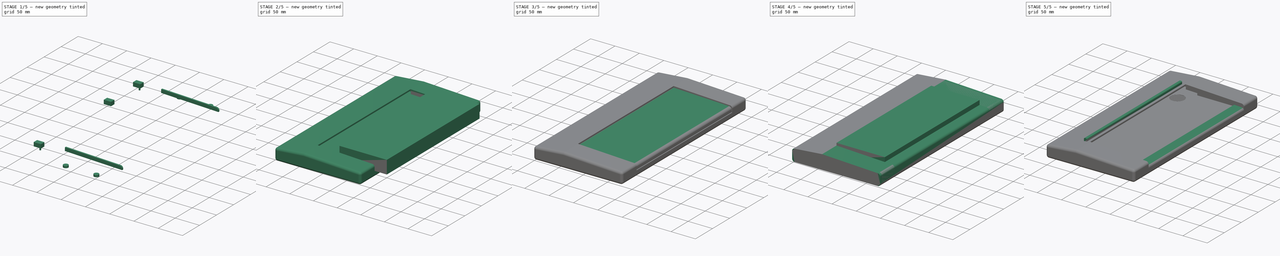
[diagram: build sequence overview — one tinted view per stage of 5, left to right]
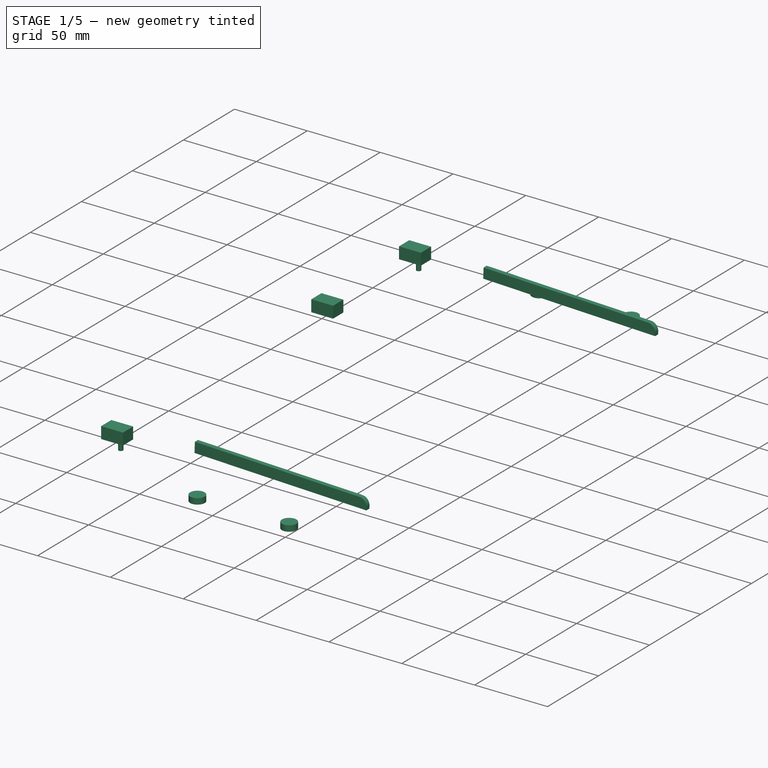
[diagram: stage 1 of 5 — iso view after this stage's code; geometry added in this stage tinted green]
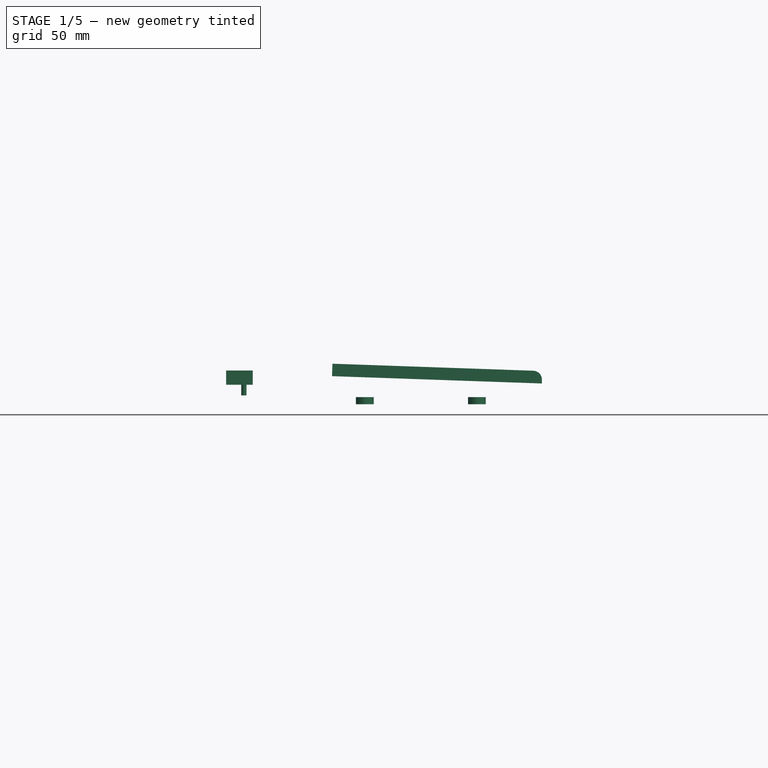
[diagram: stage 1 of 5 — front view after this stage's code; geometry added in this stage tinted green]
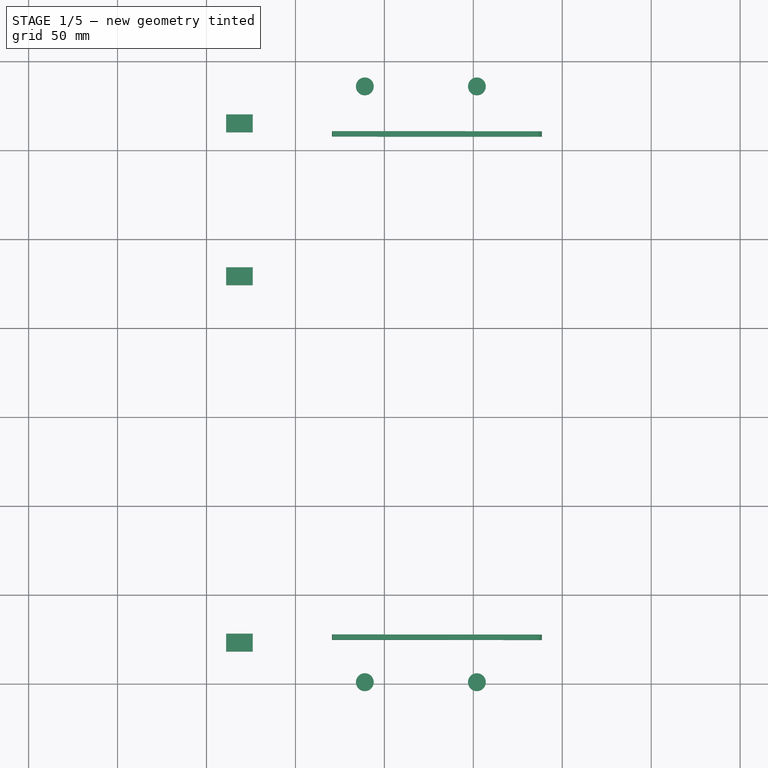
[diagram: stage 1 of 5 — top view after this stage's code; geometry added in this stage tinted green]
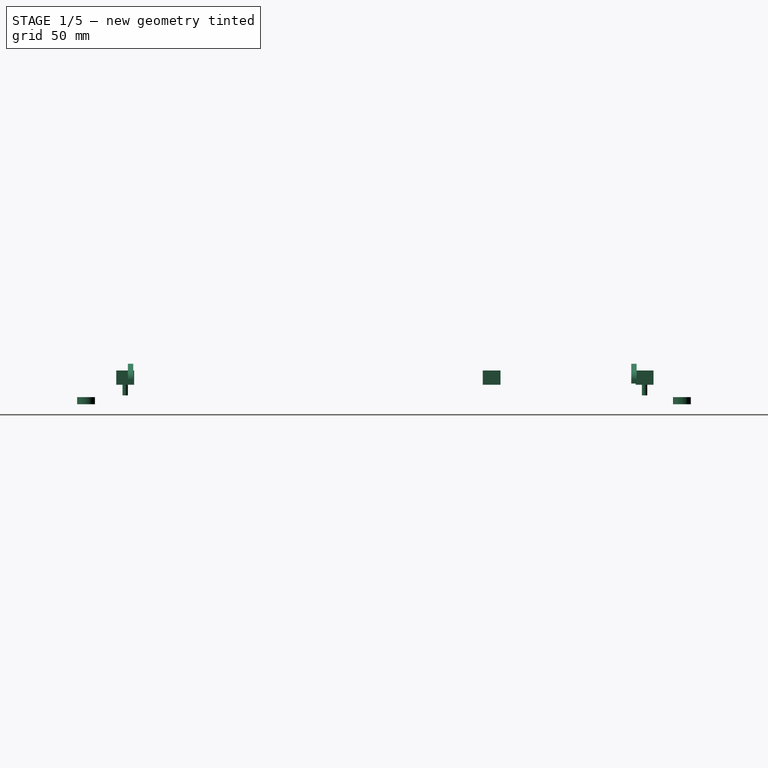
[diagram: stage 1 of 5 — right view after this stage's code; geometry added in this stage tinted green]
FCSTD DOCUMENT  (FreeCAD 0.18R16131 (Git))
Label: Caja IBM Model F 2
License: All rights reserved
LicenseURL: http://en.wikipedia.org/wiki/All_rights_reserved
objects: Part::Cylinder×22, Part::Box×19, Part::Cut×9, Part::MultiFuse×9, Sketcher::SketchObject×7, Part::Fillet×6, PartDesign::Fillet×4, Part::Extrusion×4, PartDesign::Pad×2, PartDesign::Body×2, Part::MultiCommon×1
note: 87 computed .brp shape members not serialized (recipe doc carries the construction recipe); baked Part::Feature solids carry a one-line shape summary decoded from their .brp

FEATURE [Part::Box] Box014  label="Cubo006"
  AttacherType = Attacher::AttachEngine3D
  Height = 8
  Length = 15
  Placement = pos=(-89,-40,0) rot=(0,0,1;0rad)
  Width = 10
FEATURE [Part::Box] Box015  label="Cubo007"
  AttacherType = Attacher::AttachEngine3D
  Height = 8
  Length = 15
  Placement = pos=(-89,-332,0) rot=(0,0,1;0rad)
  Width = 10
FEATURE [Part::Box] Box016  label="Cubo008"
  AttacherType = Attacher::AttachEngine3D
  Height = 8
  Length = 15
  Placement = pos=(-89,-126,0) rot=(0,0,1;0rad)
  Width = 10
FEATURE [Part::Cylinder] Cylinder016  label="Rebaje 1"
  Angle = 360
  AttacherType = Attacher::AttachEngine3D
  Height = 4
  Placement = pos=(-11,-14,4) rot=(0,0,1;0rad)
  Radius = 5
FEATURE [Part::Cylinder] Cylinder017  label="Rebaje 2"
  Angle = 360
  AttacherType = Attacher::AttachEngine3D
  Height = 4
  Placement = pos=(52,-14,4) rot=(0,0,1;0rad)
  Radius = 5
FEATURE [Part::Cylinder] Cylinder018  label="Rebaje 3"
  Angle = 360
  AttacherType = Attacher::AttachEngine3D
  Height = 4
  Placement = pos=(-11,-349,4) rot=(0,0,1;0rad)
  Radius = 5
FEATURE [Part::Cylinder] Cylinder019  label="Rebaje 4"
  Angle = 360
  AttacherType = Attacher::AttachEngine3D
  Height = 4
  Placement = pos=(52,-349,4) rot=(0,0,1;0rad)
  Radius = 5
FEATURE [Part::Cylinder] Cylinder020  label="Taladros frontal 1"
  Angle = 360
  AttacherType = Attacher::AttachEngine3D
  Height = 13
  Placement = pos=(-79,-35,2) rot=(0,0,1;0rad)
  Radius = 1.5
FEATURE [Part::Cylinder] Cylinder021  label="Taladros frontal 2"
  Angle = 360
  AttacherType = Attacher::AttachEngine3D
  Height = 13
  Placement = pos=(-79,-327,2) rot=(0,0,1;0rad)
  Radius = 1.5
FEATURE [Part::MultiFuse] Fusion007  label="Refuerzos cableza"
  Placement = pos=(0,0,15) rot=(0,0,1;0rad)
  Shapes = -> [Box014,Box015,Box016]
FEATURE [Part::MultiFuse] Fusion008  label="Taladros cabeza"
  Placement = pos=(0,0,7) rot=(0,0,1;0rad)
  Shapes = -> [Cylinder020,Cylinder021]
FEATURE [Sketcher::SketchObject] Sketch006
  MapMode = 5
  Placement = pos=(0,0,0) rot=(1,0,0;1.5708rad)
  Support = -> [XZ_Plane002]
  sketch-geometry (11):
    g0: LineSegment StartX=85.2258 StartY=21.8157 StartZ=0 EndX=24.8205 EndY=23.9426 EndZ=0
    g1: LineSegment StartX=85.0556 StartY=21.8157 StartZ=0 EndX=22.8637 EndY=24.2829 EndZ=0
    g2: LineSegment StartX=-22.5013 StartY=39.1079 StartZ=0 EndX=-14.5053 EndY=39.1079 EndZ=0
    g3: GeomPoint X=58.7282 Y=27.9388 Z=0
    g4: GeomPoint X=58.7282 Y=27.9388 Z=0
    g5: LineSegment StartX=70.3371 StartY=26.8352 StartZ=0 EndX=65.1474 EndY=29.4727 EndZ=0
    g6: LineSegment StartX=30.6909 StartY=45.9778 StartZ=0 EndX=43.1122 EndY=45.9778 EndZ=0
    g7: LineSegment StartX=43.1122 StartY=45.9778 StartZ=0 EndX=43.1122 EndY=37.1297 EndZ=0
    g8: LineSegment StartX=43.1122 StartY=37.1297 StartZ=0 EndX=30.6909 EndY=37.1297 EndZ=0
    g9: LineSegment StartX=30.6909 StartY=37.1297 StartZ=0 EndX=30.6909 EndY=45.9778 EndZ=0
    g10: LineSegment StartX=84.8004 StartY=26.2397 StartZ=0 EndX=76.8717 EndY=16.4319 EndZ=0
FEATURE [PartDesign::Body] Body001
  Group = -> [Sketch002,Sketch006]
  Origin = -> Origin001
FEATURE [Part::Box] Box017  label="Cubo009"
  AttacherType = Attacher::AttachEngine3D
  Height = 7
  Length = 118
  Placement = pos=(5,4,16) rot=(0,0,1;0rad)
  Width = 3
FEATURE [Part::Fillet] Fillet008  label="Pared lateral 1"
  Base = -> Box017
  Edges = 1 edges r=5: [Edge6]
  Placement = pos=(-35,-46.5,4) rot=(0,1,0;0.034907rad)
FEATURE [Part::Box] Box018  label="Cubo010"
  AttacherType = Attacher::AttachEngine3D
  Height = 7
  Length = 118
  Placement = pos=(5,4,16) rot=(0,0,1;0rad)
  Width = 3
FEATURE [Part::Fillet] Fillet009  label="Pared lateral 2"
  Base = -> Box018
  Edges = 1 edges r=5: [Edge6]
  Placement = pos=(-35,-329.5,4) rot=(0,1,0;0.034907rad)
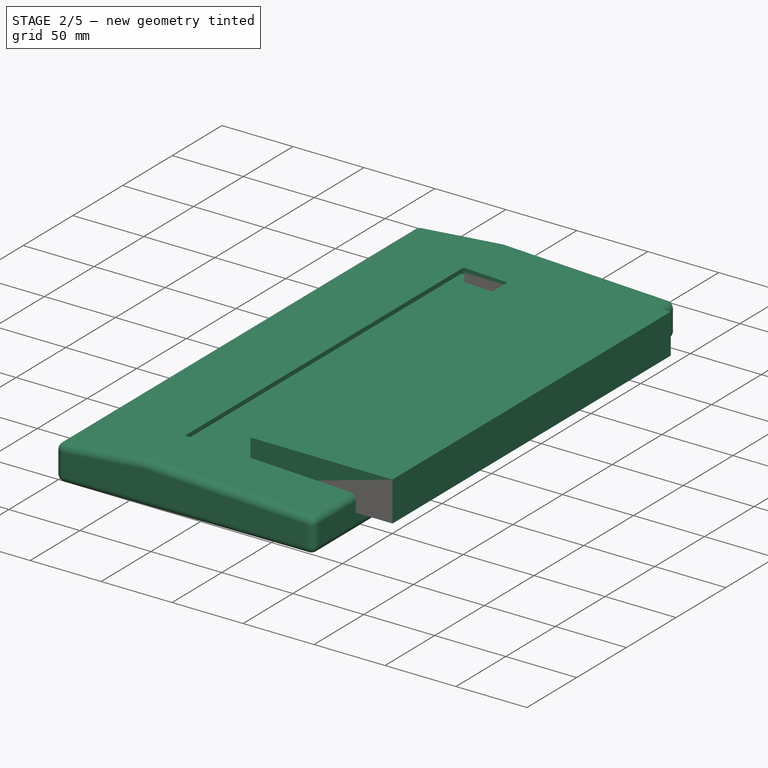
[diagram: stage 2 of 5 — iso view after this stage's code; geometry added in this stage tinted green]
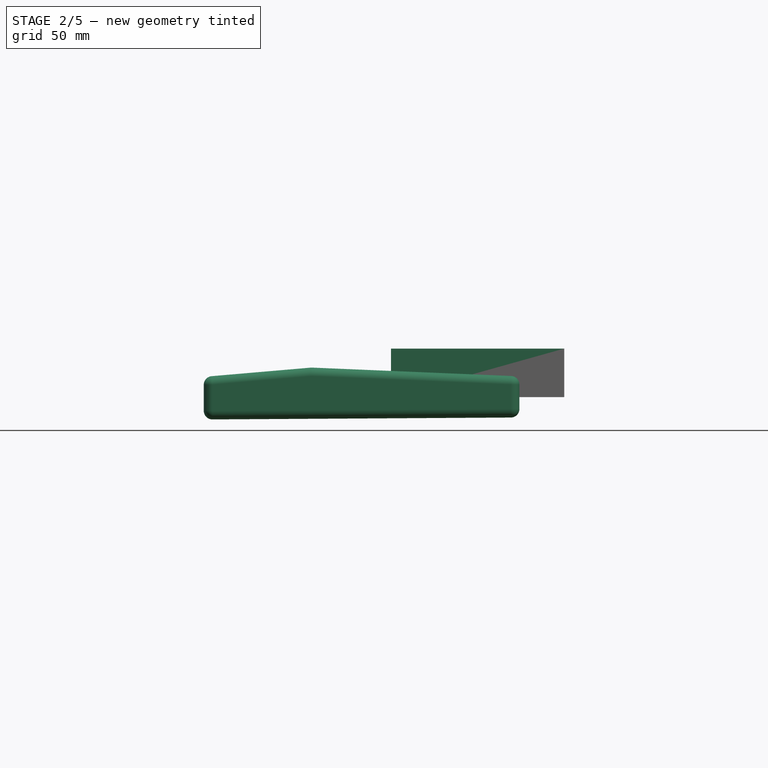
[diagram: stage 2 of 5 — front view after this stage's code; geometry added in this stage tinted green]
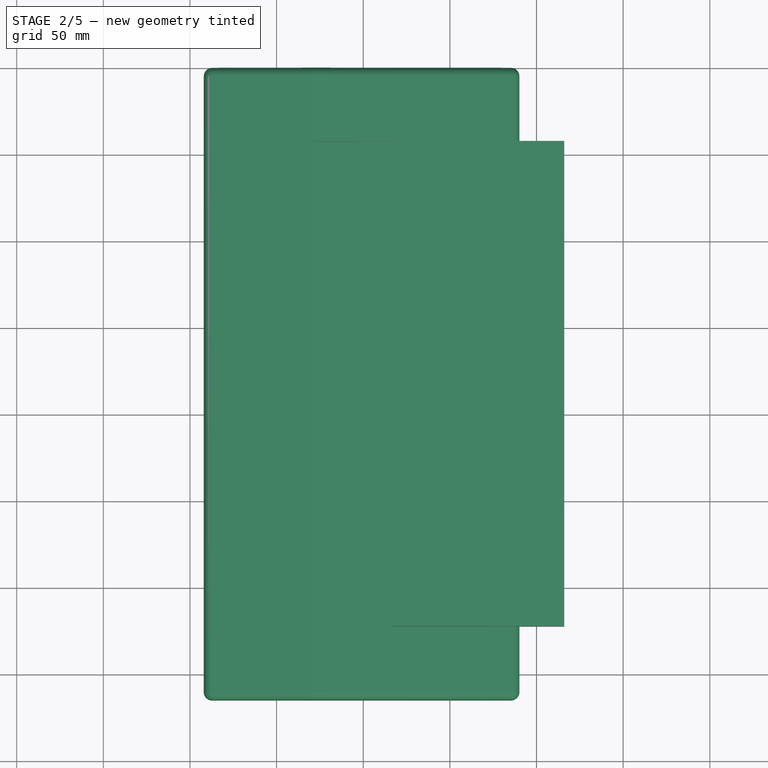
[diagram: stage 2 of 5 — top view after this stage's code; geometry added in this stage tinted green]
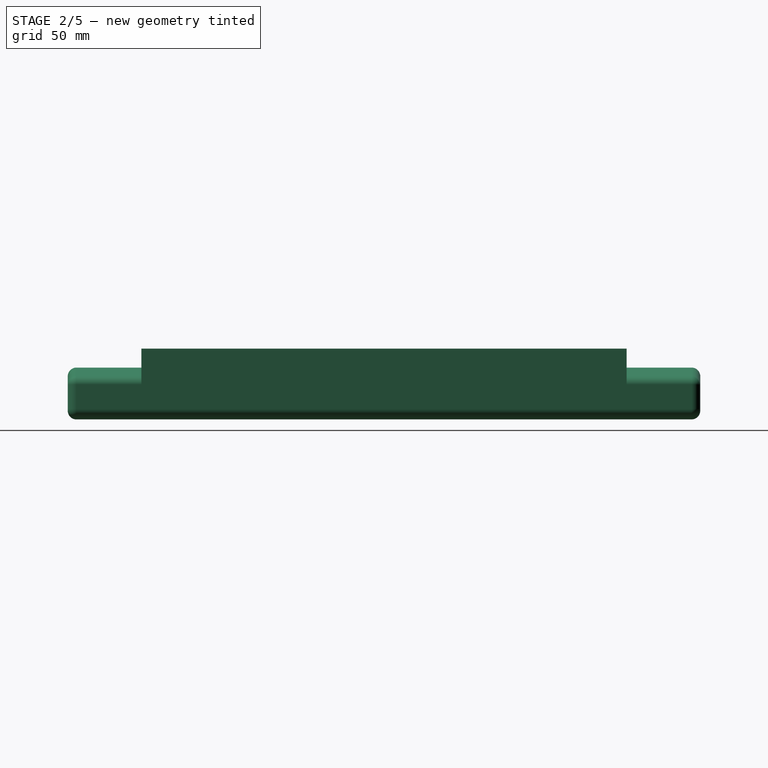
[diagram: stage 2 of 5 — right view after this stage's code; geometry added in this stage tinted green]
FEATURE [Sketcher::SketchObject] Sketch
  MapMode = 5
  Placement = pos=(0,0,0) rot=(1,0,0;1.5708rad)
  Support = -> [XZ_Plane]
  sketch-geometry (11):
    g0: LineSegment StartX=-92.0253 StartY=19.1181 StartZ=0 EndX=-92.0253 EndY=4.11802 EndZ=0
    g1: LineSegment StartX=90.1434 StartY=5.2102 StartZ=0 EndX=90.1434 EndY=19.2079 EndZ=0
    g2: LineSegment StartX=85.1751 StartY=0.210297 StartZ=0 EndX=-86.9936 EndY=-0.881875 EndZ=0
    g3: ArcOfCircle CenterX=-87.0253 CenterY=19.1181 CenterZ=0 NormalX=0 NormalY=0 NormalZ=1 AngleXU=0 Radius=5 StartAngle=1.57132 EndAngle=3.14159
    g4: ArcOfCircle CenterX=-87.0253 CenterY=4.11802 CenterZ=0 NormalX=0 NormalY=0 NormalZ=1 AngleXU=0 Radius=5 StartAngle=3.14159 EndAngle=4.71873
    g5: ArcOfCircle CenterX=85.1434 CenterY=5.2102 CenterZ=0 NormalX=0 NormalY=0 NormalZ=1 AngleXU=0 Radius=5 StartAngle=4.71873 EndAngle=6.28319
    g6: ArcOfCircle CenterX=85.1434 CenterY=19.2079 CenterZ=0 NormalX=0 NormalY=0 NormalZ=1 AngleXU=0 Radius=5 StartAngle=0 EndAngle=1.57132
    g7: GeomPoint X=-29.9556 Y=29.0366 Z=0
    g8: GeomPoint X=-30.0603 Y=2.03661 Z=0
    g9: LineSegment StartX=85.1408 StartY=24.2079 StartZ=0 EndX=-29.9556 EndY=29.0366 EndZ=0
    g10: LineSegment StartX=-87.0279 StartY=24.1181 StartZ=0 EndX=-29.9556 EndY=29.0366 EndZ=0
  constraints (18):
    c: Vertical(g0)
    c: Vertical(g1)
    c: Tangent(g0,g3) = -1.5708
    c: Coincident(g10,g3) = -1.5708
    c: Tangent(g2,g4) = 1.5708
    c: Tangent(g0,g4) = -1.5708
    c: Tangent(g2,g5) = 1.5708
    c: Tangent(g1,g5) = -1.5708
    c: Tangent(g1,g6) = -1.5708
    c: Coincident(g9,g6) = -1.5708
    c: Radius(g3) = 5
    c: Equal(g4,g6)
    c: Equal(g6,g5)
    c: Equal(g5,g3)
    c: DistanceY(g2,g10) = 25
    c: DistanceY(g8,g7) = 27
    c: Coincident(g7,g9)
    c: Coincident(g7,g10)
FEATURE [PartDesign::Pad] Pad
  Length = 365
  Length2 = 100
  Placement = pos=(0,0,0) rot=(1,0,0;1.5708rad)
  Profile = -> Sketch
  Type = 0
FEATURE [PartDesign::Fillet] Fillet
  Base = -> Pad [Edge13]
  BaseFeature = -> Pad
  Placement = pos=(0,0,0) rot=(1,0,0;1.5708rad)
  Radius = 5
FEATURE [PartDesign::Fillet] Fillet001
  Base = -> Fillet [Edge13]
  BaseFeature = -> Fillet
  Placement = pos=(0,0,0) rot=(1,0,0;1.5708rad)
  Radius = 5
FEATURE [PartDesign::Body] Body
  Group = -> [Sketch,Pad,Fillet,Fillet001]
  Origin = -> Origin
  Tip = -> Fillet001
FEATURE [Part::Box] Box  label="Cubo"
  AttacherType = Attacher::AttachEngine3D
  Height = 28
  Length = 100
  Placement = pos=(-30,-322.5,6) rot=(0,0,1;0rad)
  Width = 280
FEATURE [Part::Cut] Cut
  Base = -> Fillet001
  Tool = -> Box
FEATURE [Sketcher::SketchObject] Sketch001  label="Sketch 2"
  ExternalGeometry = -> [Sketch]
  MapMode = 5
  Placement = pos=(0,0,0) rot=(1,0,0;1.5708rad)
  Support = -> [XZ_Plane001]
  sketch-geometry (11):
    g0: LineSegment StartX=-88.5 StartY=17.1494 StartZ=0 EndX=-88.5 EndY=7.14945 EndZ=0
    g1: LineSegment StartX=88.5 StartY=7.14945 StartZ=0 EndX=88.5 EndY=17.1494 EndZ=0
    g2: LineSegment StartX=83.5 StartY=2.14945 StartZ=0 EndX=-83.5 EndY=2.14945 EndZ=0
    g3: ArcOfCircle CenterX=-83.5 CenterY=17.1494 CenterZ=0 NormalX=0 NormalY=0 NormalZ=1 AngleXU=0 Radius=5 StartAngle=1.5708 EndAngle=3.14159
    g4: ArcOfCircle CenterX=-83.5 CenterY=7.14945 CenterZ=0 NormalX=0 NormalY=0 NormalZ=1 AngleXU=0 Radius=5 StartAngle=3.14159 EndAngle=4.71239
    g5: ArcOfCircle CenterX=83.5 CenterY=7.14945 CenterZ=0 NormalX=0 NormalY=0 NormalZ=1 AngleXU=0 Radius=5 StartAngle=4.71239 EndAngle=6.28319
    g6: ArcOfCircle CenterX=83.5 CenterY=17.1494 CenterZ=0 NormalX=0 NormalY=0 NormalZ=1 AngleXU=0 Radius=5 StartAngle=0 EndAngle=1.5708
    g7: GeomPoint X=-29.7829 Y=29.0343 Z=0
    g8: GeomPoint X=-29.6033 Y=26.0343 Z=0
    g9: LineSegment StartX=83.5 StartY=22.1494 StartZ=0 EndX=-29.6033 EndY=26.0343 EndZ=0
    g10: LineSegment StartX=-83.5 StartY=22.1494 StartZ=0 EndX=-29.6033 EndY=26.0343 EndZ=0
  constraints (20):
    c: Vertical(g0)
    c: Vertical(g1)
    c: Tangent(g0,g3) = -1.5708
    c: Coincident(g10,g3) = -1.5708
    c: Tangent(g2,g4) = 1.5708
    c: Tangent(g0,g4) = -1.5708
    c: Tangent(g2,g5) = 1.5708
    c: Tangent(g1,g5) = -1.5708
    c: Tangent(g1,g6) = -1.5708
    c: Coincident(g9,g6) = -1.5708
    c: Radius(g3) = 5
    c: Equal(g4,g6)
    c: Equal(g6,g5)
    c: Equal(g5,g3)
    c: DistanceY(g2,g10) = 20
    c: DistanceX(g10,g9) = 167
    c: Symmetric(g0,g1,g-2)
    c: DistanceY(g8,g7) = 3
    c: Coincident(g8,g9)
    c: Coincident(g10,g8)
FEATURE [Part::Extrusion] Extrude
  Base = -> Sketch001
  Dir = (0,-1,-2e-16)
  DirMode = 2
  FaceMakerClass = Part::FaceMakerBullseye
  LengthFwd = 357
  LengthRev = 0
  Placement = pos=(0,-3,0) rot=(0,0,1;0rad)
  Solid = true
  Symmetric = false
FEATURE [Part::Cut] Cut001  label="Base 1"
  Base = -> Cut
  Tool = -> Extrude
FEATURE [Part::Box] Box003  label="Soporte bajo 1"
  AttacherType = Attacher::AttachEngine3D
  Height = 5
  Length = 80
  Placement = pos=(-21.5,-20,2) rot=(0,0,1;0rad)
  Width = 12
FEATURE [Part::Box] Box004  label="Soporte bajo 2"
  AttacherType = Attacher::AttachEngine3D
  Height = 5
  Length = 80
  Placement = pos=(-21.5,-355,2) rot=(0,0,1;0rad)
  Width = 12
FEATURE [Part::Box] Box005  label="Soporte alto 1"
  AttacherType = Attacher::AttachEngine3D
  Height = 17
  Length = 80
  Placement = pos=(-21.5,-355,8) rot=(0,0,1;0rad)
  Width = 12
FEATURE [Part::Box] Box006  label="Soporte alto 2"
  AttacherType = Attacher::AttachEngine3D
  Height = 17
  Length = 80
  Placement = pos=(-21.5,-20,8) rot=(0,0,1;0rad)
  Width = 12
FEATURE [Part::MultiFuse] Fusion  label="Soportes Interiores"
  Shapes = -> [Box003,Box004,Box005,Box006]
FEATURE [Part::MultiFuse] Fusion002  label="Base 2"
  Shapes = -> [Cut001,Fusion]
FEATURE [Part::Box] Box007  label="Cubo003"
  AttacherType = Attacher::AttachEngine3D
  Height = 28
  Length = 100
  Placement = pos=(16,-322.5,12) rot=(0,0,1;0rad)
  Width = 280
FEATURE [Part::MultiFuse] Fusion006  label="Rebajes cabezas tornillos"
  Shapes = -> [Cylinder016,Cylinder017,Cylinder018,Cylinder019]
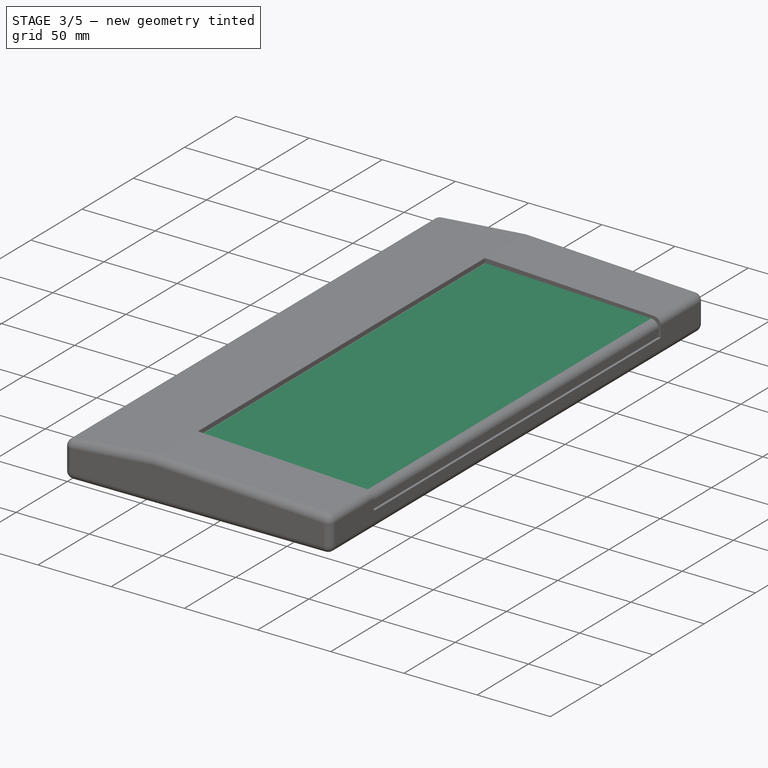
[diagram: stage 3 of 5 — iso view after this stage's code; geometry added in this stage tinted green]
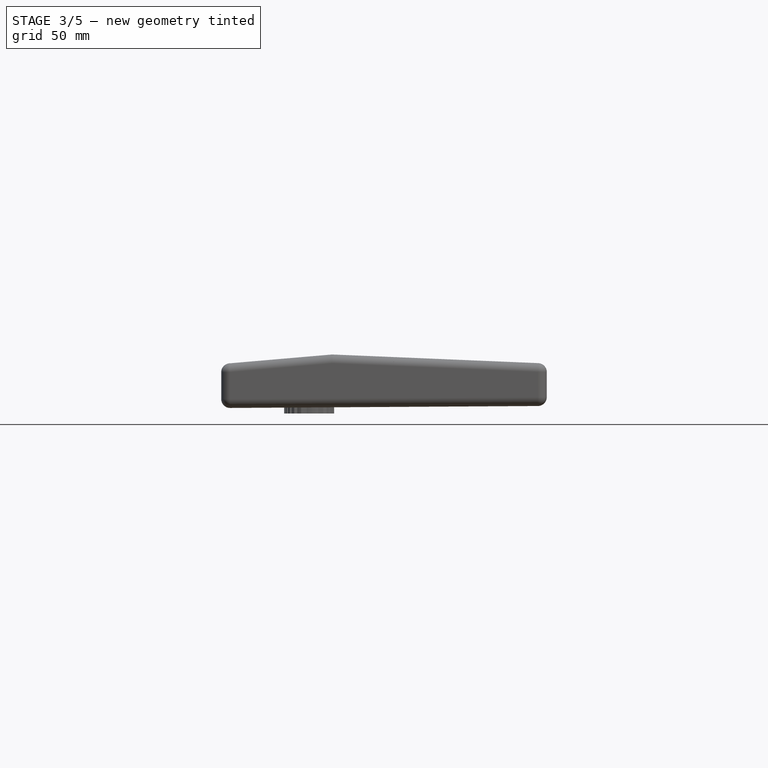
[diagram: stage 3 of 5 — front view after this stage's code; geometry added in this stage tinted green]
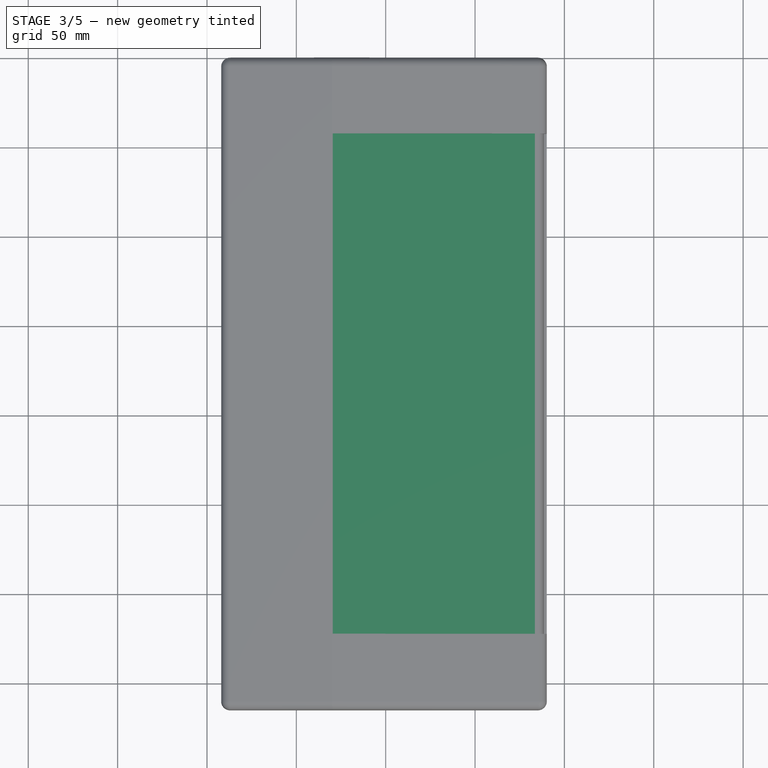
[diagram: stage 3 of 5 — top view after this stage's code; geometry added in this stage tinted green]
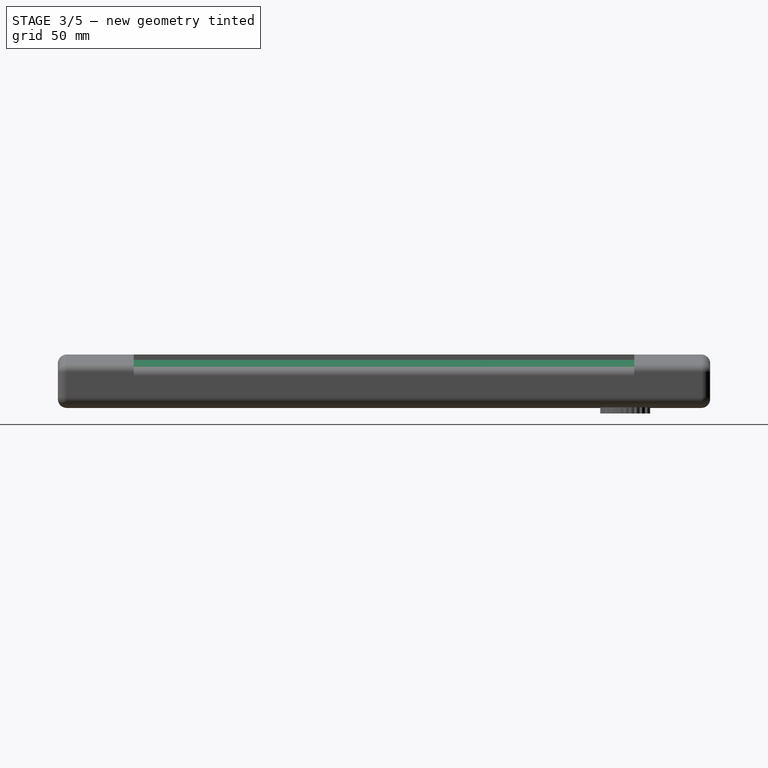
[diagram: stage 3 of 5 — right view after this stage's code; geometry added in this stage tinted green]
FEATURE [Part::Cylinder] Cylinder  label="Taladro V1"
  Angle = 360
  AttacherType = Attacher::AttachEngine3D
  Height = 14
  Placement = pos=(52,-14,7) rot=(0,0,1;0rad)
  Radius = 1.5
FEATURE [Part::Cylinder] Cylinder001  label="Taladro V2"
  Angle = 360
  AttacherType = Attacher::AttachEngine3D
  Height = 25
  Placement = pos=(5,-14,-4) rot=(0,0,1;0rad)
  Radius = 1.5
FEATURE [Part::Cylinder] Cylinder002  label="Taladro V3"
  Angle = 360
  AttacherType = Attacher::AttachEngine3D
  Height = 14
  Placement = pos=(-11,-14,7) rot=(0,0,1;0rad)
  Radius = 1.5
FEATURE [Part::Cylinder] Cylinder003  label="Taladro V4"
  Angle = 360
  AttacherType = Attacher::AttachEngine3D
  Height = 14
  Placement = pos=(52,-349,7) rot=(0,0,1;0rad)
  Radius = 1.5
FEATURE [Part::Cylinder] Cylinder004  label="Taladro V5"
  Angle = 360
  AttacherType = Attacher::AttachEngine3D
  Height = 25
  Placement = pos=(5,-349,-4) rot=(0,0,1;0rad)
  Radius = 1.5
FEATURE [Part::Cylinder] Cylinder005  label="Taladro V6"
  Angle = 360
  AttacherType = Attacher::AttachEngine3D
  Height = 14
  Placement = pos=(-11,-349,7) rot=(0,0,1;0rad)
  Radius = 1.5
FEATURE [Part::Cylinder] Cylinder006  label="Taladro H1"
  Angle = 360
  AttacherType = Attacher::AttachEngine3D
  Height = 21
  Placement = pos=(-79,-46,11) rot=(0,-1,0;1.5708rad)
  Radius = 3
FEATURE [Part::Cylinder] Cylinder007  label="Taladro H2"
  Angle = 360
  AttacherType = Attacher::AttachEngine3D
  Height = 21
  Placement = pos=(-79,-317,11) rot=(0,-1,0;1.5708rad)
  Radius = 3
FEATURE [Sketcher::SketchObject] Sketch002
  MapMode = 5
  Support = -> [XY_Plane001]
  sketch-geometry (38):
    g0: ArcOfCircle CenterX=-52.8552 CenterY=-47.5272 CenterZ=0 NormalX=0 NormalY=0 NormalZ=1 AngleXU=0 Radius=14 StartAngle=2.52246 EndAngle=2.67993
    g1: LineSegment StartX=-64.2566 StartY=-39.4026 StartZ=0 EndX=-44.1555 EndY=-36.5583 EndZ=0
    g2: LineSegment StartX=-65.3896 StartY=-41.291 StartZ=0 EndX=-42.543 EndY=-38.0583 EndZ=0
    g3: LineSegment StartX=-66.125 StartY=-43.0647 StartZ=0 EndX=-41.3444 EndY=-39.5583 EndZ=0
    g4: LineSegment StartX=-66.8085 StartY=-46.3847 StartZ=0 EndX=-39.7666 EndY=-42.5583 EndZ=0
    g5: LineSegment StartX=-66.7182 StartY=-49.4812 StartZ=0 EndX=-38.9943 EndY=-45.5583 EndZ=0
    g6: LineSegment StartX=-66.4281 StartY=-50.9587 StartZ=0 EndX=-38.8631 EndY=-47.0583 EndZ=0
    g7: LineSegment StartX=-65.983 StartY=-52.3914 StartZ=0 EndX=-38.8932 EndY=-48.5583 EndZ=0
    g8: LineSegment StartX=-65.3817 StartY=-53.7791 StartZ=0 EndX=-39.0859 EndY=-50.0583 EndZ=0
    g9: LineSegment StartX=-64.6175 StartY=-55.1197 StartZ=0 EndX=-39.4481 EndY=-51.5583 EndZ=0
    g10: LineSegment StartX=-54.1565 StartY=-61.4665 StartZ=0 EndX=-47.7377 EndY=-60.5583 EndZ=0
    g11: LineSegment StartX=-57.6275 StartY=-34.3656 StartZ=0 EndX=-51.9218 EndY=-33.5583 EndZ=0
    g12: LineSegment StartX=-46.4891 StartY=-35.0583 StartZ=0 EndX=-62.4308 EndY=-37.314 EndZ=0
    g13: LineSegment StartX=-66.5784 StartY=-44.7569 StartZ=0 EndX=-40.4393 EndY=-41.0583 EndZ=0
    g14: LineSegment StartX=-66.8486 StartY=-47.9575 StartZ=0 EndX=-39.2918 EndY=-44.0583 EndZ=0
    g15: LineSegment StartX=-39.9942 StartY=-53.0583 StartZ=0 EndX=-63.6768 EndY=-56.4093 EndZ=0
    g16: LineSegment StartX=-43.0891 StartY=-57.5583 StartZ=0 EndX=-59.4548 EndY=-59.874 EndZ=0
    g17: LineSegment StartX=-40.7489 StartY=-54.5583 StartZ=0 EndX=-62.5355 EndY=-57.6411 EndZ=0
    g18: LineSegment StartX=-41.7548 StartY=-56.0583 StartZ=0 EndX=-61.153 EndY=-58.8031 EndZ=0
    g19: LineSegment StartX=-57.2836 StartY=-60.8083 StartZ=0 EndX=-44.9159 EndY=-59.0583 EndZ=0
    g20: ArcOfCircle CenterX=-52.8552 CenterY=-47.5272 CenterZ=0 NormalX=0 NormalY=0 NormalZ=1 AngleXU=0 Radius=14 StartAngle=2.81719 EndAngle=2.9424
    g21: ArcOfCircle CenterX=-52.8552 CenterY=-47.5272 CenterZ=0 NormalX=0 NormalY=0 NormalZ=1 AngleXU=0 Radius=14 StartAngle=3.0599 EndAngle=3.17234
    g22: ArcOfCircle CenterX=-52.8552 CenterY=-47.5272 CenterZ=0 NormalX=0 NormalY=0 NormalZ=1 AngleXU=0 Radius=14 StartAngle=3.28162 EndAngle=3.38923
    g23: ArcOfCircle CenterX=-52.8552 CenterY=-47.5272 CenterZ=0 NormalX=0 NormalY=0 NormalZ=1 AngleXU=0 Radius=14 StartAngle=3.49644 EndAngle=3.60452
    g24: ArcOfCircle CenterX=-52.8552 CenterY=-47.5272 CenterZ=0 NormalX=0 NormalY=0 NormalZ=1 AngleXU=0 Radius=14 StartAngle=3.7148 EndAngle=3.82888
    g25: ArcOfCircle CenterX=-52.8552 CenterY=-47.5272 CenterZ=0 NormalX=0 NormalY=0 NormalZ=1 AngleXU=0 Radius=14 StartAngle=3.94889 EndAngle=4.07799
    g26: ArcOfCircle CenterX=-52.8552 CenterY=-47.5272 CenterZ=0 NormalX=0 NormalY=0 NormalZ=1 AngleXU=0 Radius=14 StartAngle=4.22151 EndAngle=4.39055
    g27: ArcOfCircle CenterX=-52.8552 CenterY=-47.5272 CenterZ=0 NormalX=0 NormalY=0 NormalZ=1 AngleXU=0 Radius=14 StartAngle=4.61931 EndAngle=5.0866
    g28: ArcOfCircle CenterX=-52.8552 CenterY=-47.5272 CenterZ=0 NormalX=0 NormalY=0 NormalZ=1 AngleXU=0 Radius=14 StartAngle=5.31536 EndAngle=5.4844
    g29: ArcOfCircle CenterX=-52.8552 CenterY=-47.5272 CenterZ=0 NormalX=0 NormalY=0 NormalZ=1 AngleXU=0 Radius=14 StartAngle=5.62792 EndAngle=5.75702
    g30: ArcOfCircle CenterX=-52.8552 CenterY=-47.5272 CenterZ=0 NormalX=0 NormalY=0 NormalZ=1 AngleXU=0 Radius=14 StartAngle=5.87703 EndAngle=5.99111
    g31: ArcOfCircle CenterX=-52.8552 CenterY=-47.5272 CenterZ=0 NormalX=0 NormalY=0 NormalZ=1 AngleXU=0 Radius=14 StartAngle=6.10139 EndAngle=6.20947
    g32: ArcOfCircle CenterX=-52.8552 CenterY=-47.5272 CenterZ=0 NormalX=0 NormalY=0 NormalZ=1 AngleXU=0 Radius=14 StartAngle=0.0334956 EndAngle=0.1411
    g33: ArcOfCircle CenterX=-52.8552 CenterY=-47.5272 CenterZ=0 NormalX=0 NormalY=0 NormalZ=1 AngleXU=0 Radius=14 StartAngle=0.250383 EndAngle=0.362826
    g34: ArcOfCircle CenterX=-52.8552 CenterY=-47.5272 CenterZ=0 NormalX=0 NormalY=0 NormalZ=1 AngleXU=0 Radius=14 StartAngle=0.480318 EndAngle=0.605537
    g35: ArcOfCircle CenterX=-52.8552 CenterY=-47.5272 CenterZ=0 NormalX=0 NormalY=0 NormalZ=1 AngleXU=0 Radius=14 StartAngle=0.742791 EndAngle=0.900261
    g36: ArcOfCircle CenterX=-52.8552 CenterY=-47.5272 CenterZ=0 NormalX=0 NormalY=0 NormalZ=1 AngleXU=0 Radius=14 StartAngle=1.09873 EndAngle=1.50408
    g37: ArcOfCircle CenterX=-52.8552 CenterY=-47.5272 CenterZ=0 NormalX=0 NormalY=0 NormalZ=1 AngleXU=0 Radius=14 StartAngle=1.91865 EndAngle=2.32399
  constraints (145):
    c: Parallel(g11,g12)
    c: Parallel(g12,g1)
    c: Parallel(g1,g2)
    c: Parallel(g2,g3)
    c: Parallel(g3,g13)
    c: Parallel(g13,g4)
    c: Parallel(g4,g14)
    c: Parallel(g14,g5)
    c: Parallel(g5,g6)
    c: Parallel(g6,g7)
    c: Parallel(g7,g8)
    c: Parallel(g8,g9)
    c: Parallel(g9,g10)
    c: DistanceY(g2,g1) = 1.5
    c: DistanceY(g3,g2) = 1.5
    c: DistanceY(g13,g3) = 1.5
    c: DistanceY(g4,g13) = 1.5
    c: DistanceY(g6,g5) = 1.5
    c: DistanceY(g7,g6) = 1.5
    c: DistanceY(g8,g7) = 1.5
    c: DistanceY(g9,g8) = 1.5
    c: Parallel(g9,g18)
    c: Parallel(g18,g17)
    c: Parallel(g17,g15)
    c: Parallel(g15,g16)
    c: DistanceY(g15,g9) = 1.5
    c: DistanceY(g17,g15) = 1.5
    c: DistanceY(g18,g17) = 1.5
    c: DistanceY(g16,g18) = 1.5
    c: Parallel(g10,g19)
    c: DistanceY(g14,g4) = 1.5
    c: DistanceY(g5,g14) = 1.5
    c: PointOnObject(g11,g0)
    c: PointOnObject(g12,g0)
    c: PointOnObject(g13,g0)
    c: PointOnObject(g4,g0)
    c: PointOnObject(g14,g0)
    c: PointOnObject(g5,g0)
    c: PointOnObject(g6,g0)
    c: PointOnObject(g7,g0)
    c: PointOnObject(g8,g0)
    c: PointOnObject(g15,g0)
    c: PointOnObject(g9,g0)
    c: PointOnObject(g17,g0)
    c: PointOnObject(g18,g0)
    c: PointOnObject(g16,g0)
    c: PointOnObject(g10,g0)
    c: PointOnObject(g19,g0)
    c: PointOnObject(g11,g0)
    c: PointOnObject(g1,g0)
    c: PointOnObject(g2,g0)
    c: Radius(g0) = 14
    c: PointOnObject(g3,g0)
    c: PointOnObject(g13,g0)
    c: PointOnObject(g4,g0)
    c: PointOnObject(g14,g0)
    c: PointOnObject(g5,g0)
    c: PointOnObject(g6,g0)
    c: PointOnObject(g7,g0)
    c: PointOnObject(g8,g0)
    c: PointOnObject(g9,g0)
    c: PointOnObject(g15,g0)
    c: PointOnObject(g17,g0)
    c: PointOnObject(g18,g0)
    c: PointOnObject(g16,g0)
    c: PointOnObject(g10,g0)
    c: PointOnObject(g19,g0)
    c: DistanceY(g1,g12) = 1.5
    c: DistanceY(g12,g11) = 1.5
    c: DistanceY(g19,g16) = 1.5
    c: DistanceY(g10,g19) = 1.5
    c: Coincident(g0,g1)
    c: Coincident(g37,g12)
    c: Equal(g0,g20)
    c: Coincident(g0,g2)
    c: Coincident(g20,g3)
    c: Coincident(g0,g20)
    c: Equal(g20,g21)
    c: PointOnObject(g20,g13)
    c: PointOnObject(g21,g4)
    c: Coincident(g20,g21)
    c: Equal(g21,g22)
    c: PointOnObject(g21,g14)
    c: PointOnObject(g22,g5)
    c: Coincident(g21,g22)
    c: Equal(g22,g23)
    c: PointOnObject(g22,g6)
    c: PointOnObject(g23,g7)
    c: Coincident(g22,g23)
    c: Equal(g23,g24)
    c: PointOnObject(g23,g8)
    c: PointOnObject(g24,g9)
    c: Coincident(g23,g24)
    c: Equal(g24,g25)
    c: PointOnObject(g24,g15)
    c: PointOnObject(g25,g17)
    c: Coincident(g24,g25)
    c: Equal(g25,g26)
    c: PointOnObject(g25,g18)
    c: PointOnObject(g26,g16)
    c: Coincident(g25,g26)
    c: Equal(g26,g27)
    c: PointOnObject(g26,g19)
    c: PointOnObject(g27,g10)
    c: Coincident(g26,g27)
    c: Equal(g27,g28)
    c: PointOnObject(g27,g10)
    c: PointOnObject(g28,g19)
    c: Coincident(g27,g28)
    c: Equal(g28,g29)
    c: PointOnObject(g28,g16)
    c: PointOnObject(g29,g18)
    c: Coincident(g28,g29)
    c: Equal(g29,g30)
    c: PointOnObject(g29,g17)
    c: PointOnObject(g30,g15)
    c: Coincident(g29,g30)
    c: Equal(g30,g31)
    c: PointOnObject(g30,g9)
    c: PointOnObject(g31,g8)
    c: Coincident(g30,g31)
    c: Equal(g31,g32)
    c: PointOnObject(g31,g7)
    c: PointOnObject(g32,g6)
    c: Coincident(g31,g32)
    c: Equal(g32,g33)
    c: PointOnObject(g32,g5)
    c: PointOnObject(g33,g14)
    c: Coincident(g32,g33)
    c: Equal(g33,g34)
    c: PointOnObject(g33,g4)
    c: PointOnObject(g34,g13)
    c: Coincident(g33,g34)
    c: Equal(g34,g35)
    c: PointOnObject(g34,g3)
    c: PointOnObject(g35,g2)
    c: Coincident(g34,g35)
    c: Equal(g35,g36)
    c: PointOnObject(g35,g1)
    c: PointOnObject(g36,g12)
    c: Coincident(g35,g36)
    c: Equal(g36,g37)
    c: PointOnObject(g36,g11)
    c: PointOnObject(g37,g11)
    c: Coincident(g36,g37)
FEATURE [Part::Extrusion] Extrude001  label="Ventilacion"
  Base = -> Sketch002
  Dir = (0,0,1)
  DirMode = 2
  FaceMakerClass = Part::FaceMakerBullseye
  LengthFwd = 10
  LengthRev = 0
  Placement = pos=(10,0,-4) rot=(0,0,1;0rad)
  Solid = true
  Symmetric = false
FEATURE [Part::MultiFuse] Fusion001  label="Taladros"
  Shapes = -> [Cylinder,Cylinder001,Cylinder002,Cylinder003,Cylinder004,Cylinder005,Cylinder006,Cylinder007]
FEATURE [Part::Cut] Cut002  label="Base 3"
  Base = -> Fusion002
  Tool = -> Fusion001
FEATURE [Part::Cut] Cut003  label="Base 4"
  Base = -> Cut002
  Tool = -> Extrude001
FEATURE [Part::Cylinder] Cylinder015  label="Taladro V012"
  Angle = 360
  AttacherType = Attacher::AttachEngine3D
  Height = 14
  Placement = pos=(52,-14,7) rot=(0,0,1;0rad)
  Radius = 1.5
FEATURE [Part::Extrusion] Extrude002  label="Ventilacion001"
  Base = -> Sketch003
  Dir = (0,0,1)
  DirMode = 2
  FaceMakerClass = Part::FaceMakerBullseye
  LengthFwd = 10
  LengthRev = 0
  Placement = pos=(10,0,-4) rot=(0,0,1;0rad)
  Solid = true
  Symmetric = false
FEATURE [Part::Extrusion] Extrude003
  Base = -> Sketch004
  Dir = (0,-1,-2e-16)
  DirMode = 2
  FaceMakerClass = Part::FaceMakerBullseye
  LengthFwd = 357
  LengthRev = 0
  Placement = pos=(0,-3,0) rot=(0,0,1;0rad)
  Solid = true
  Symmetric = false
FEATURE [Part::Cut] Cut008
  Base = -> Cut003
  Tool = -> Box007
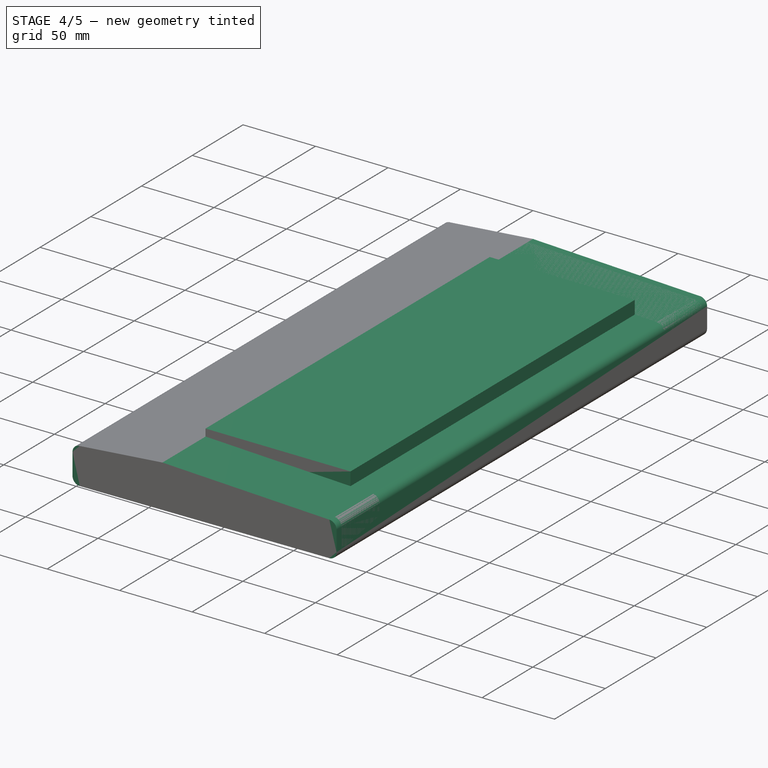
[diagram: stage 4 of 5 — iso view after this stage's code; geometry added in this stage tinted green]
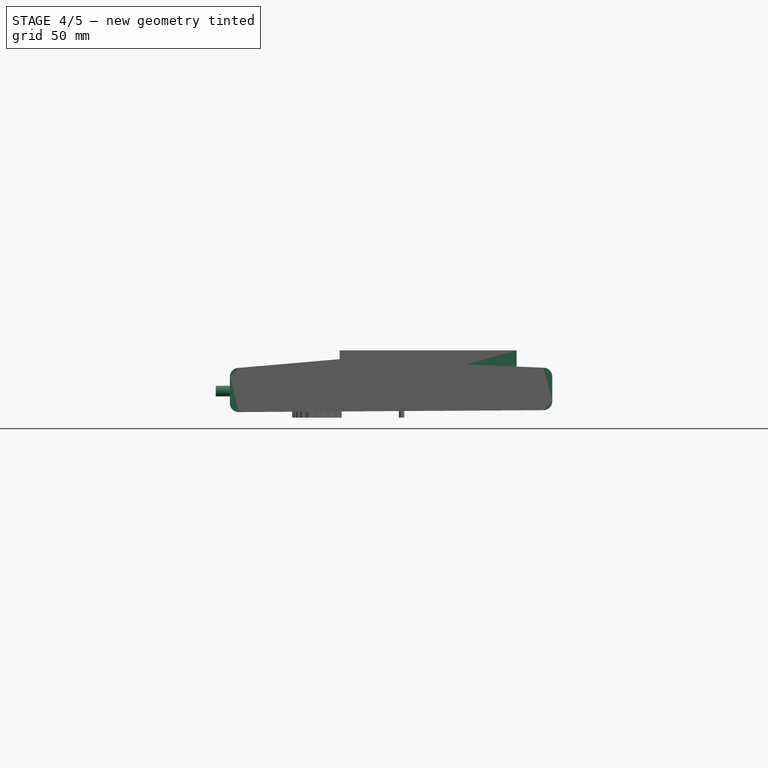
[diagram: stage 4 of 5 — front view after this stage's code; geometry added in this stage tinted green]
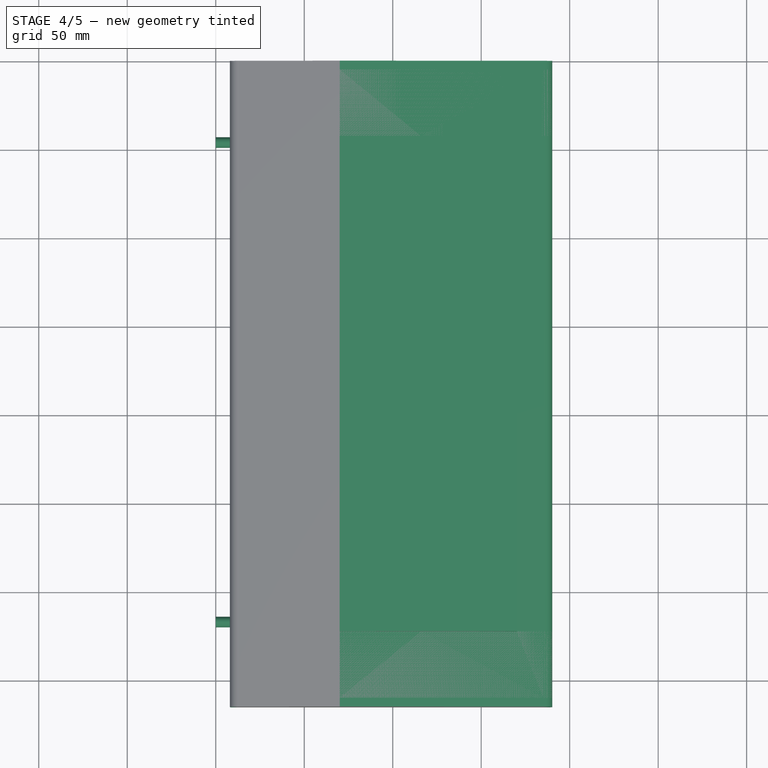
[diagram: stage 4 of 5 — top view after this stage's code; geometry added in this stage tinted green]
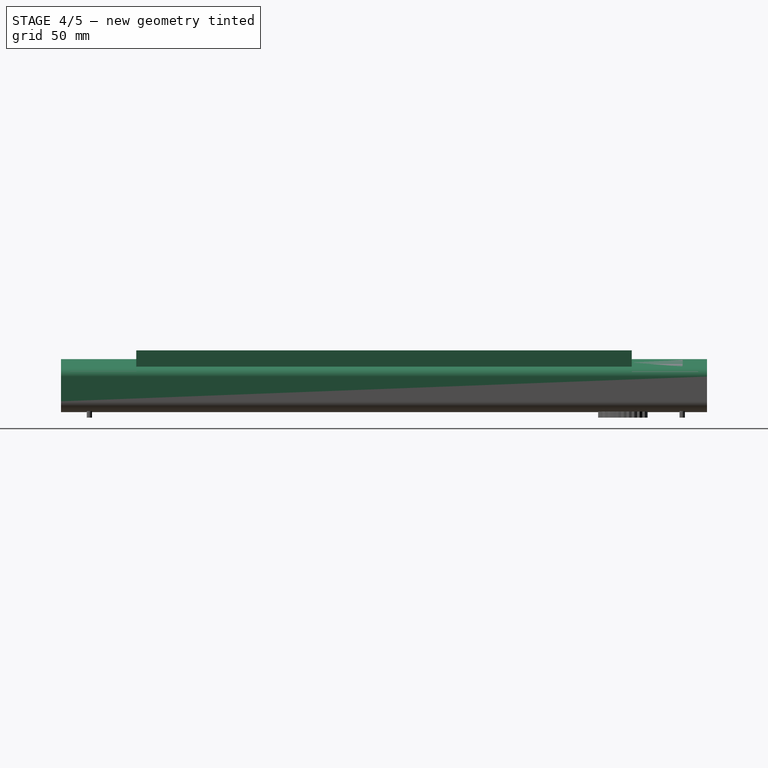
[diagram: stage 4 of 5 — right view after this stage's code; geometry added in this stage tinted green]
FEATURE [Part::Cylinder] Cylinder008  label="Taladro H003"
  Angle = 360
  AttacherType = Attacher::AttachEngine3D
  Height = 21
  Placement = pos=(-79,-317,11) rot=(0,-1,0;1.5708rad)
  Radius = 3
FEATURE [Part::Cylinder] Cylinder009  label="Taladro V007"
  Angle = 360
  AttacherType = Attacher::AttachEngine3D
  Height = 25
  Placement = pos=(5,-349,-4) rot=(0,0,1;0rad)
  Radius = 1.5
FEATURE [Part::Cylinder] Cylinder010  label="Taladro V008"
  Angle = 360
  AttacherType = Attacher::AttachEngine3D
  Height = 14
  Placement = pos=(-11,-349,7) rot=(0,0,1;0rad)
  Radius = 1.5
FEATURE [Part::Cylinder] Cylinder011  label="Taladro H004"
  Angle = 360
  AttacherType = Attacher::AttachEngine3D
  Height = 21
  Placement = pos=(-79,-46,11) rot=(0,-1,0;1.5708rad)
  Radius = 3
FEATURE [Sketcher::SketchObject] Sketch003
  MapMode = 5
  Support = -> [XY_Plane002]
  sketch-geometry (38):
    g0: ArcOfCircle CenterX=-52.8552 CenterY=-47.5272 CenterZ=0 NormalX=0 NormalY=0 NormalZ=1 AngleXU=0 Radius=14 StartAngle=2.52246 EndAngle=2.67993
    g1: LineSegment StartX=-64.2566 StartY=-39.4026 StartZ=0 EndX=-44.1555 EndY=-36.5583 EndZ=0
    g2: LineSegment StartX=-65.3896 StartY=-41.291 StartZ=0 EndX=-42.543 EndY=-38.0583 EndZ=0
    g3: LineSegment StartX=-66.125 StartY=-43.0647 StartZ=0 EndX=-41.3444 EndY=-39.5583 EndZ=0
    g4: LineSegment StartX=-66.8085 StartY=-46.3847 StartZ=0 EndX=-39.7666 EndY=-42.5583 EndZ=0
    g5: LineSegment StartX=-66.7182 StartY=-49.4812 StartZ=0 EndX=-38.9943 EndY=-45.5583 EndZ=0
    g6: LineSegment StartX=-66.4281 StartY=-50.9587 StartZ=0 EndX=-38.8631 EndY=-47.0583 EndZ=0
    g7: LineSegment StartX=-65.983 StartY=-52.3914 StartZ=0 EndX=-38.8932 EndY=-48.5583 EndZ=0
    g8: LineSegment StartX=-65.3817 StartY=-53.7791 StartZ=0 EndX=-39.0859 EndY=-50.0583 EndZ=0
    g9: LineSegment StartX=-64.6175 StartY=-55.1197 StartZ=0 EndX=-39.4481 EndY=-51.5583 EndZ=0
    g10: LineSegment StartX=-54.1565 StartY=-61.4665 StartZ=0 EndX=-47.7377 EndY=-60.5583 EndZ=0
    g11: LineSegment StartX=-57.6275 StartY=-34.3656 StartZ=0 EndX=-51.9218 EndY=-33.5583 EndZ=0
    g12: LineSegment StartX=-46.4891 StartY=-35.0583 StartZ=0 EndX=-62.4308 EndY=-37.314 EndZ=0
    g13: LineSegment StartX=-66.5784 StartY=-44.7569 StartZ=0 EndX=-40.4393 EndY=-41.0583 EndZ=0
    g14: LineSegment StartX=-66.8486 StartY=-47.9575 StartZ=0 EndX=-39.2918 EndY=-44.0583 EndZ=0
    g15: LineSegment StartX=-39.9942 StartY=-53.0583 StartZ=0 EndX=-63.6768 EndY=-56.4093 EndZ=0
    g16: LineSegment StartX=-43.0891 StartY=-57.5583 StartZ=0 EndX=-59.4548 EndY=-59.874 EndZ=0
    g17: LineSegment StartX=-40.7489 StartY=-54.5583 StartZ=0 EndX=-62.5355 EndY=-57.6411 EndZ=0
    g18: LineSegment StartX=-41.7548 StartY=-56.0583 StartZ=0 EndX=-61.153 EndY=-58.8031 EndZ=0
    g19: LineSegment StartX=-57.2836 StartY=-60.8083 StartZ=0 EndX=-44.9159 EndY=-59.0583 EndZ=0
    g20: ArcOfCircle CenterX=-52.8552 CenterY=-47.5272 CenterZ=0 NormalX=0 NormalY=0 NormalZ=1 AngleXU=0 Radius=14 StartAngle=2.81719 EndAngle=2.9424
    g21: ArcOfCircle CenterX=-52.8552 CenterY=-47.5272 CenterZ=0 NormalX=0 NormalY=0 NormalZ=1 AngleXU=0 Radius=14 StartAngle=3.0599 EndAngle=3.17234
    g22: ArcOfCircle CenterX=-52.8552 CenterY=-47.5272 CenterZ=0 NormalX=0 NormalY=0 NormalZ=1 AngleXU=0 Radius=14 StartAngle=3.28162 EndAngle=3.38923
    g23: ArcOfCircle CenterX=-52.8552 CenterY=-47.5272 CenterZ=0 NormalX=0 NormalY=0 NormalZ=1 AngleXU=0 Radius=14 StartAngle=3.49644 EndAngle=3.60452
    g24: ArcOfCircle CenterX=-52.8552 CenterY=-47.5272 CenterZ=0 NormalX=0 NormalY=0 NormalZ=1 AngleXU=0 Radius=14 StartAngle=3.7148 EndAngle=3.82888
    g25: ArcOfCircle CenterX=-52.8552 CenterY=-47.5272 CenterZ=0 NormalX=0 NormalY=0 NormalZ=1 AngleXU=0 Radius=14 StartAngle=3.94889 EndAngle=4.07799
    g26: ArcOfCircle CenterX=-52.8552 CenterY=-47.5272 CenterZ=0 NormalX=0 NormalY=0 NormalZ=1 AngleXU=0 Radius=14 StartAngle=4.22151 EndAngle=4.39055
    g27: ArcOfCircle CenterX=-52.8552 CenterY=-47.5272 CenterZ=0 NormalX=0 NormalY=0 NormalZ=1 AngleXU=0 Radius=14 StartAngle=4.61931 EndAngle=5.0866
    g28: ArcOfCircle CenterX=-52.8552 CenterY=-47.5272 CenterZ=0 NormalX=0 NormalY=0 NormalZ=1 AngleXU=0 Radius=14 StartAngle=5.31536 EndAngle=5.4844
    g29: ArcOfCircle CenterX=-52.8552 CenterY=-47.5272 CenterZ=0 NormalX=0 NormalY=0 NormalZ=1 AngleXU=0 Radius=14 StartAngle=5.62792 EndAngle=5.75702
    g30: ArcOfCircle CenterX=-52.8552 CenterY=-47.5272 CenterZ=0 NormalX=0 NormalY=0 NormalZ=1 AngleXU=0 Radius=14 StartAngle=5.87703 EndAngle=5.99111
    g31: ArcOfCircle CenterX=-52.8552 CenterY=-47.5272 CenterZ=0 NormalX=0 NormalY=0 NormalZ=1 AngleXU=0 Radius=14 StartAngle=6.10139 EndAngle=6.20947
    g32: ArcOfCircle CenterX=-52.8552 CenterY=-47.5272 CenterZ=0 NormalX=0 NormalY=0 NormalZ=1 AngleXU=0 Radius=14 StartAngle=0.0334956 EndAngle=0.1411
    g33: ArcOfCircle CenterX=-52.8552 CenterY=-47.5272 CenterZ=0 NormalX=0 NormalY=0 NormalZ=1 AngleXU=0 Radius=14 StartAngle=0.250383 EndAngle=0.362826
    g34: ArcOfCircle CenterX=-52.8552 CenterY=-47.5272 CenterZ=0 NormalX=0 NormalY=0 NormalZ=1 AngleXU=0 Radius=14 StartAngle=0.480318 EndAngle=0.605537
    g35: ArcOfCircle CenterX=-52.8552 CenterY=-47.5272 CenterZ=0 NormalX=0 NormalY=0 NormalZ=1 AngleXU=0 Radius=14 StartAngle=0.742791 EndAngle=0.900261
    g36: ArcOfCircle CenterX=-52.8552 CenterY=-47.5272 CenterZ=0 NormalX=0 NormalY=0 NormalZ=1 AngleXU=0 Radius=14 StartAngle=1.09873 EndAngle=1.50408
    g37: ArcOfCircle CenterX=-52.8552 CenterY=-47.5272 CenterZ=0 NormalX=0 NormalY=0 NormalZ=1 AngleXU=0 Radius=14 StartAngle=1.91865 EndAngle=2.32399
  constraints (145):
    c: Parallel(g11,g12)
    c: Parallel(g12,g1)
    c: Parallel(g1,g2)
    c: Parallel(g2,g3)
    c: Parallel(g3,g13)
    c: Parallel(g13,g4)
    c: Parallel(g4,g14)
    c: Parallel(g14,g5)
    c: Parallel(g5,g6)
    c: Parallel(g6,g7)
    c: Parallel(g7,g8)
    c: Parallel(g8,g9)
    c: Parallel(g9,g10)
    c: DistanceY(g2,g1) = 1.5
    c: DistanceY(g3,g2) = 1.5
    c: DistanceY(g13,g3) = 1.5
    c: DistanceY(g4,g13) = 1.5
    c: DistanceY(g6,g5) = 1.5
    c: DistanceY(g7,g6) = 1.5
    c: DistanceY(g8,g7) = 1.5
    c: DistanceY(g9,g8) = 1.5
    c: Parallel(g9,g18)
    c: Parallel(g18,g17)
    c: Parallel(g17,g15)
    c: Parallel(g15,g16)
    c: DistanceY(g15,g9) = 1.5
    c: DistanceY(g17,g15) = 1.5
    c: DistanceY(g18,g17) = 1.5
    c: DistanceY(g16,g18) = 1.5
    c: Parallel(g10,g19)
    c: DistanceY(g14,g4) = 1.5
    c: DistanceY(g5,g14) = 1.5
    c: PointOnObject(g11,g0)
    c: PointOnObject(g12,g0)
    c: PointOnObject(g13,g0)
    c: PointOnObject(g4,g0)
    c: PointOnObject(g14,g0)
    c: PointOnObject(g5,g0)
    c: PointOnObject(g6,g0)
    c: PointOnObject(g7,g0)
    c: PointOnObject(g8,g0)
    c: PointOnObject(g15,g0)
    c: PointOnObject(g9,g0)
    c: PointOnObject(g17,g0)
    c: PointOnObject(g18,g0)
    c: PointOnObject(g16,g0)
    c: PointOnObject(g10,g0)
    c: PointOnObject(g19,g0)
    c: PointOnObject(g11,g0)
    c: PointOnObject(g1,g0)
    c: PointOnObject(g2,g0)
    c: Radius(g0) = 14
    c: PointOnObject(g3,g0)
    c: PointOnObject(g13,g0)
    c: PointOnObject(g4,g0)
    c: PointOnObject(g14,g0)
    c: PointOnObject(g5,g0)
    c: PointOnObject(g6,g0)
    c: PointOnObject(g7,g0)
    c: PointOnObject(g8,g0)
    c: PointOnObject(g9,g0)
    c: PointOnObject(g15,g0)
    c: PointOnObject(g17,g0)
    c: PointOnObject(g18,g0)
    c: PointOnObject(g16,g0)
    c: PointOnObject(g10,g0)
    c: PointOnObject(g19,g0)
    c: DistanceY(g1,g12) = 1.5
    c: DistanceY(g12,g11) = 1.5
    c: DistanceY(g19,g16) = 1.5
    c: DistanceY(g10,g19) = 1.5
    c: Coincident(g0,g1)
    c: Coincident(g37,g12)
    c: Equal(g0,g20)
    c: Coincident(g0,g2)
    c: Coincident(g20,g3)
    c: Coincident(g0,g20)
    c: Equal(g20,g21)
    c: PointOnObject(g20,g13)
    c: PointOnObject(g21,g4)
    c: Coincident(g20,g21)
    c: Equal(g21,g22)
    c: PointOnObject(g21,g14)
    c: PointOnObject(g22,g5)
    c: Coincident(g21,g22)
    c: Equal(g22,g23)
    c: PointOnObject(g22,g6)
    c: PointOnObject(g23,g7)
    c: Coincident(g22,g23)
    c: Equal(g23,g24)
    c: PointOnObject(g23,g8)
    c: PointOnObject(g24,g9)
    c: Coincident(g23,g24)
    c: Equal(g24,g25)
    c: PointOnObject(g24,g15)
    c: PointOnObject(g25,g17)
    c: Coincident(g24,g25)
    c: Equal(g25,g26)
    c: PointOnObject(g25,g18)
    c: PointOnObject(g26,g16)
    c: Coincident(g25,g26)
    c: Equal(g26,g27)
    c: PointOnObject(g26,g19)
    c: PointOnObject(g27,g10)
    c: Coincident(g26,g27)
    c: Equal(g27,g28)
    c: PointOnObject(g27,g10)
    c: PointOnObject(g28,g19)
    c: Coincident(g27,g28)
    c: Equal(g28,g29)
    c: PointOnObject(g28,g16)
    c: PointOnObject(g29,g18)
    c: Coincident(g28,g29)
    c: Equal(g29,g30)
    c: PointOnObject(g29,g17)
    c: PointOnObject(g30,g15)
    c: Coincident(g29,g30)
    c: Equal(g30,g31)
    c: PointOnObject(g30,g9)
    c: PointOnObject(g31,g8)
    c: Coincident(g30,g31)
    c: Equal(g31,g32)
    c: PointOnObject(g31,g7)
    c: PointOnObject(g32,g6)
    c: Coincident(g31,g32)
    c: Equal(g32,g33)
    c: PointOnObject(g32,g5)
    c: PointOnObject(g33,g14)
    c: Coincident(g32,g33)
    c: Equal(g33,g34)
    c: PointOnObject(g33,g4)
    c: PointOnObject(g34,g13)
    c: Coincident(g33,g34)
    c: Equal(g34,g35)
    c: PointOnObject(g34,g3)
    c: PointOnObject(g35,g2)
    c: Coincident(g34,g35)
    c: Equal(g35,g36)
    c: PointOnObject(g35,g1)
    c: PointOnObject(g36,g12)
    c: Coincident(g35,g36)
    c: Equal(g36,g37)
    c: PointOnObject(g36,g11)
    c: PointOnObject(g37,g11)
    c: Coincident(g36,g37)
FEATURE [Sketcher::SketchObject] Sketch005
  MapMode = 5
  Placement = pos=(0,0,0) rot=(1,0,0;1.5708rad)
  Support = -> [XZ_Plane003]
  sketch-geometry (11):
    g0: LineSegment StartX=-92.0253 StartY=19.1181 StartZ=0 EndX=-92.0253 EndY=4.11802 EndZ=0
    g1: LineSegment StartX=90.1434 StartY=5.2102 StartZ=0 EndX=90.1434 EndY=19.2079 EndZ=0
    g2: LineSegment StartX=85.1751 StartY=0.210297 StartZ=0 EndX=-86.9936 EndY=-0.881875 EndZ=0
    g3: ArcOfCircle CenterX=-87.0253 CenterY=19.1181 CenterZ=0 NormalX=0 NormalY=0 NormalZ=1 AngleXU=0 Radius=5 StartAngle=1.57132 EndAngle=3.14159
    g4: ArcOfCircle CenterX=-87.0253 CenterY=4.11802 CenterZ=0 NormalX=0 NormalY=0 NormalZ=1 AngleXU=0 Radius=5 StartAngle=3.14159 EndAngle=4.71873
    g5: ArcOfCircle CenterX=85.1434 CenterY=5.2102 CenterZ=0 NormalX=0 NormalY=0 NormalZ=1 AngleXU=0 Radius=5 StartAngle=4.71873 EndAngle=6.28319
    g6: ArcOfCircle CenterX=85.1434 CenterY=19.2079 CenterZ=0 NormalX=0 NormalY=0 NormalZ=1 AngleXU=0 Radius=5 StartAngle=0 EndAngle=1.57132
    g7: GeomPoint X=-29.9556 Y=29.0366 Z=0
    g8: GeomPoint X=-30.0603 Y=2.03661 Z=0
    g9: LineSegment StartX=85.1408 StartY=24.2079 StartZ=0 EndX=-29.9556 EndY=29.0366 EndZ=0
    g10: LineSegment StartX=-87.0279 StartY=24.1181 StartZ=0 EndX=-29.9556 EndY=29.0366 EndZ=0
  constraints (18):
    c: Vertical(g0)
    c: Vertical(g1)
    c: Tangent(g0,g3) = -1.5708
    c: Coincident(g10,g3) = -1.5708
    c: Tangent(g2,g4) = 1.5708
    c: Tangent(g0,g4) = -1.5708
    c: Tangent(g2,g5) = 1.5708
    c: Tangent(g1,g5) = -1.5708
    c: Tangent(g1,g6) = -1.5708
    c: Coincident(g9,g6) = -1.5708
    c: Radius(g3) = 5
    c: Equal(g4,g6)
    c: Equal(g6,g5)
    c: Equal(g5,g3)
    c: DistanceY(g2,g10) = 25
    c: DistanceY(g8,g7) = 27
    c: Coincident(g7,g9)
    c: Coincident(g7,g10)
FEATURE [Sketcher::SketchObject] Sketch004  label="Sketch 003"
  ExternalGeometry = -> [Sketch005]
  MapMode = 5
  Placement = pos=(0,0,0) rot=(1,0,0;1.5708rad)
  Support = -> [XZ_Plane004]
  sketch-geometry (11):
    g0: LineSegment StartX=-88.5 StartY=17.1494 StartZ=0 EndX=-88.5 EndY=7.14945 EndZ=0
    g1: LineSegment StartX=88.5 StartY=7.14945 StartZ=0 EndX=88.5 EndY=17.1494 EndZ=0
    g2: LineSegment StartX=83.5 StartY=2.14945 StartZ=0 EndX=-83.5 EndY=2.14945 EndZ=0
    g3: ArcOfCircle CenterX=-83.5 CenterY=17.1494 CenterZ=0 NormalX=0 NormalY=0 NormalZ=1 AngleXU=0 Radius=5 StartAngle=1.5708 EndAngle=3.14159
    g4: ArcOfCircle CenterX=-83.5 CenterY=7.14945 CenterZ=0 NormalX=0 NormalY=0 NormalZ=1 AngleXU=0 Radius=5 StartAngle=3.14159 EndAngle=4.71239
    g5: ArcOfCircle CenterX=83.5 CenterY=7.14945 CenterZ=0 NormalX=0 NormalY=0 NormalZ=1 AngleXU=0 Radius=5 StartAngle=4.71239 EndAngle=6.28319
    g6: ArcOfCircle CenterX=83.5 CenterY=17.1494 CenterZ=0 NormalX=0 NormalY=0 NormalZ=1 AngleXU=0 Radius=5 StartAngle=0 EndAngle=1.5708
    g7: GeomPoint X=-29.7829 Y=29.0343 Z=0
    g8: GeomPoint X=-29.6033 Y=26.0343 Z=0
    g9: LineSegment StartX=83.5 StartY=22.1494 StartZ=0 EndX=-29.6033 EndY=26.0343 EndZ=0
    g10: LineSegment StartX=-83.5 StartY=22.1494 StartZ=0 EndX=-29.6033 EndY=26.0343 EndZ=0
  constraints (20):
    c: Vertical(g0)
    c: Vertical(g1)
    c: Tangent(g0,g3) = -1.5708
    c: Coincident(g10,g3) = -1.5708
    c: Tangent(g2,g4) = 1.5708
    c: Tangent(g0,g4) = -1.5708
    c: Tangent(g2,g5) = 1.5708
    c: Tangent(g1,g5) = -1.5708
    c: Tangent(g1,g6) = -1.5708
    c: Coincident(g9,g6) = -1.5708
    c: Radius(g3) = 5
    c: Equal(g4,g6)
    c: Equal(g6,g5)
    c: Equal(g5,g3)
    c: DistanceY(g2,g10) = 20
    c: DistanceX(g10,g9) = 167
    c: Symmetric(g0,g1,g-2)
    c: DistanceY(g8,g7) = 3
    c: Coincident(g8,g9)
    c: Coincident(g10,g8)
FEATURE [Part::Cylinder] Cylinder012  label="Taladro V009"
  Angle = 360
  AttacherType = Attacher::AttachEngine3D
  Height = 25
  Placement = pos=(5,-14,-4) rot=(0,0,1;0rad)
  Radius = 1.5
FEATURE [Part::Cylinder] Cylinder013  label="Taladro V010"
  Angle = 360
  AttacherType = Attacher::AttachEngine3D
  Height = 14
  Placement = pos=(-11,-14,7) rot=(0,0,1;0rad)
  Radius = 1.5
FEATURE [Part::Box] Box009  label="Soporte alto 003"
  AttacherType = Attacher::AttachEngine3D
  Height = 17
  Length = 80
  Placement = pos=(-21.5,-20,8) rot=(0,0,1;0rad)
  Width = 12
FEATURE [Part::Cylinder] Cylinder014  label="Taladro V011"
  Angle = 360
  AttacherType = Attacher::AttachEngine3D
  Height = 14
  Placement = pos=(52,-349,7) rot=(0,0,1;0rad)
  Radius = 1.5
FEATURE [Part::Box] Box010  label="Soporte bajo 003"
  AttacherType = Attacher::AttachEngine3D
  Height = 5
  Length = 80
  Placement = pos=(-21.5,-355,2) rot=(0,0,1;0rad)
  Width = 12
FEATURE [Part::Box] Box011  label="Soporte bajo 004"
  AttacherType = Attacher::AttachEngine3D
  Height = 5
  Length = 80
  Placement = pos=(-21.5,-20,2) rot=(0,0,1;0rad)
  Width = 12
FEATURE [Part::Box] Box012  label="Cubo005"
  AttacherType = Attacher::AttachEngine3D
  Height = 28
  Length = 100
  Placement = pos=(-30,-322.5,6) rot=(0,0,1;0rad)
  Width = 280
FEATURE [PartDesign::Pad] Pad001
  Length = 365
  Length2 = 100
  Placement = pos=(0,0,0) rot=(1,0,0;1.5708rad)
  Profile = -> Sketch005
  Type = 0
FEATURE [Part::Box] Box013  label="Soporte alto 004"
  AttacherType = Attacher::AttachEngine3D
  Height = 17
  Length = 80
  Placement = pos=(-21.5,-355,8) rot=(0,0,1;0rad)
  Width = 12
FEATURE [Part::MultiFuse] Fusion005  label="Soportes Interiores001"
  Shapes = -> [Box011,Box010,Box013,Box009]
FEATURE [Part::MultiFuse] Fusion004  label="Taladros001"
  Shapes = -> [Cylinder015,Cylinder012,Cylinder013,Cylinder014,Cylinder009,Cylinder010,Cylinder011,Cylinder008]
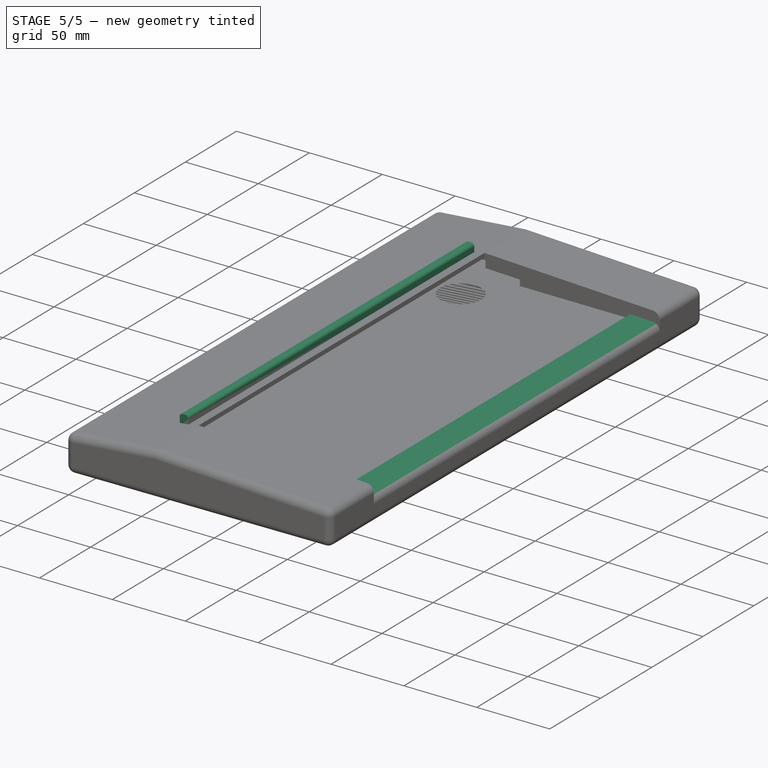
[diagram: stage 5 of 5 — iso view after this stage's code; geometry added in this stage tinted green]
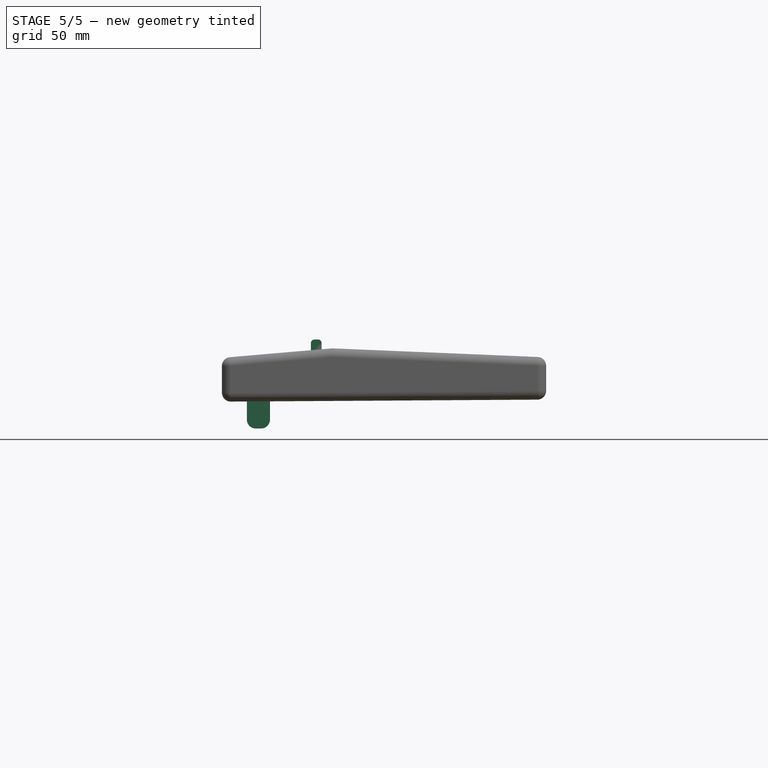
[diagram: stage 5 of 5 — front view after this stage's code; geometry added in this stage tinted green]
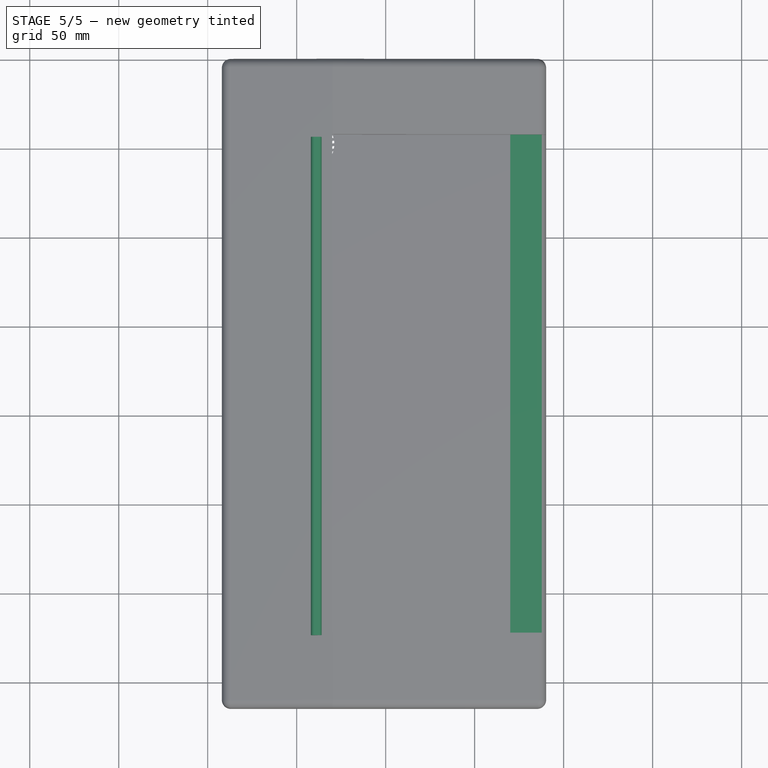
[diagram: stage 5 of 5 — top view after this stage's code; geometry added in this stage tinted green]
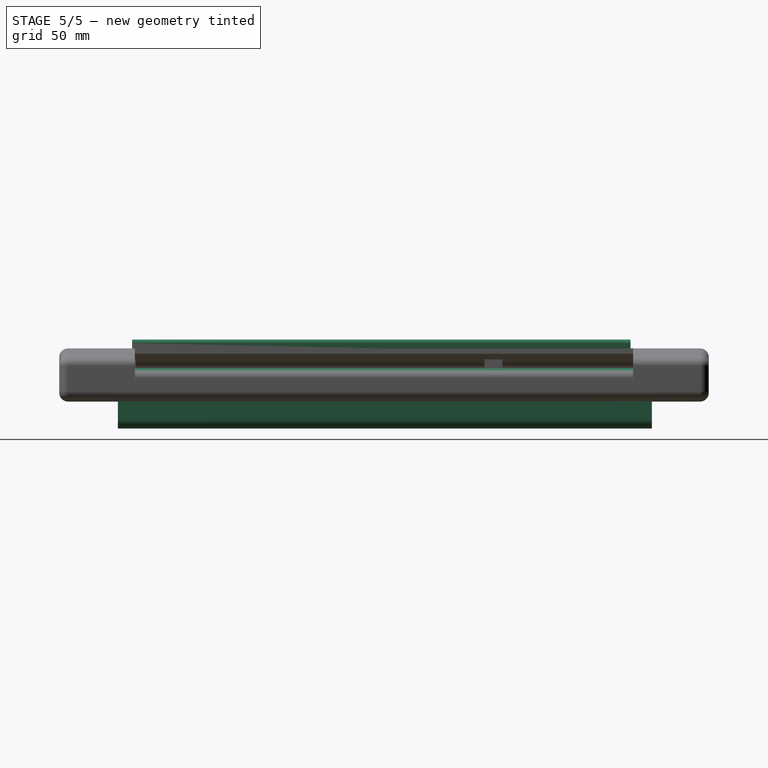
[diagram: stage 5 of 5 — right view after this stage's code; geometry added in this stage tinted green]
FEATURE [Part::Box] Box001  label="Cubo001"
  AttacherType = Attacher::AttachEngine3D
  Height = 8
  Length = 6
  Placement = pos=(-42,-309,21) rot=(0,0,1;0rad)
  Width = 280
FEATURE [Part::Box] Box002  label="Cubo002"
  AttacherType = Attacher::AttachEngine3D
  Height = 16
  Length = 13
  Placement = pos=(-78,-322,-16) rot=(0,0,1;0rad)
  Width = 300
FEATURE [Part::Fillet] Fillet002
  Base = -> Box002
  Edges = 1 edges r=5: [Edge4]
FEATURE [Part::Fillet] Fillet003
  Base = -> Fillet002
  Edges = 1 edges r=5: [Edge15]
  Placement = pos=(0,-10,0) rot=(0,0,1;0rad)
FEATURE [Part::Fillet] Fillet004
  Base = -> Box001
  Edges = 1 edges r=2: [Edge2]
FEATURE [Part::Fillet] Fillet005
  Base = -> Fillet004
  Edges = 1 edges r=2: [Edge15]
  Placement = pos=(0,-15,5) rot=(0,0,1;0rad)
FEATURE [Part::Box] Box008  label="Cubo004"
  AttacherType = Attacher::AttachEngine3D
  Height = 28
  Length = 100
  Placement = pos=(16,-322.5,17) rot=(0,0,1;0rad)
  Width = 280
FEATURE [PartDesign::Fillet] Fillet007
  Base = -> Pad001 [Edge13]
  BaseFeature = -> Pad001
  Placement = pos=(0,0,0) rot=(1,0,0;1.5708rad)
  Radius = 5
FEATURE [PartDesign::Fillet] Fillet006
  Base = -> Fillet007 [Edge13]
  BaseFeature = -> Fillet007
  Placement = pos=(0,0,0) rot=(1,0,0;1.5708rad)
  Radius = 5
FEATURE [Part::Cut] Cut004
  Base = -> Fillet006
  Tool = -> Box012
FEATURE [Part::Cut] Cut006  label="Base 006"
  Base = -> Cut004
  Tool = -> Extrude003
FEATURE [Part::MultiFuse] Fusion003  label="Base 008"
  Shapes = -> [Cut006,Fusion005]
FEATURE [Part::Cut] Cut007  label="Base 007"
  Base = -> Fusion003
  Tool = -> Fusion004
FEATURE [Part::Cut] Cut005  label="Base 005"
  Base = -> Cut007
  Tool = -> Extrude002
FEATURE [Part::MultiCommon] Common
  Placement = pos=(0,0,-7) rot=(0,0,1;0rad)
  Shapes = -> [Cut005,Box008]
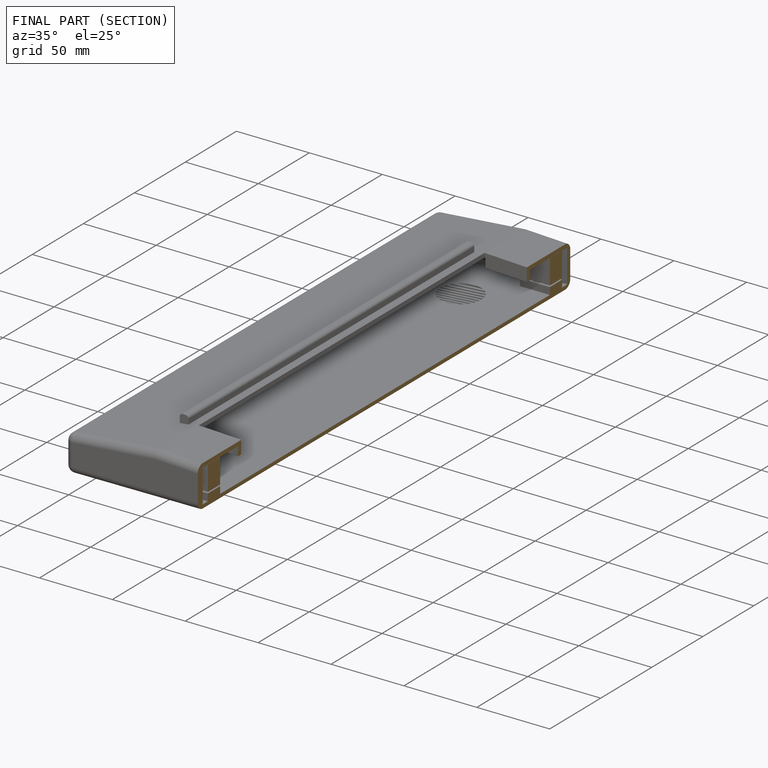
[diagram: finished part — half-section view (interior)]
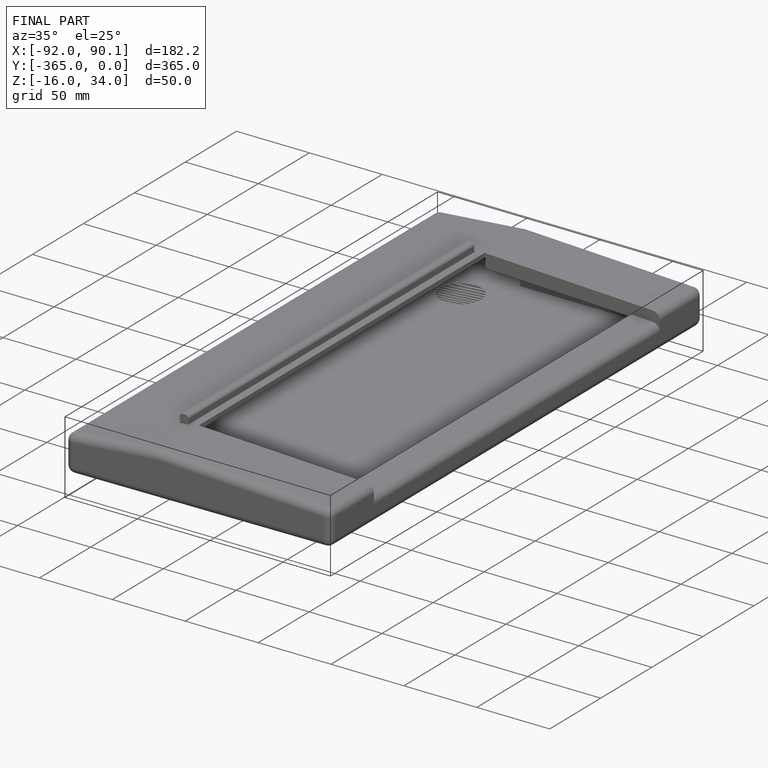
[diagram: finished part — iso view with bounding-box wireframe]
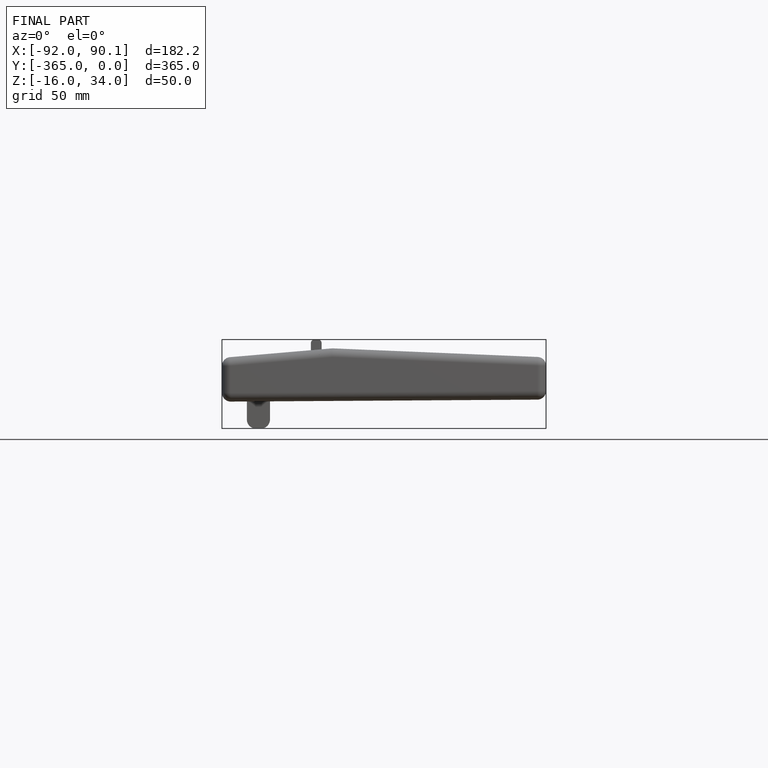
[diagram: finished part — front view with bounding-box wireframe]
